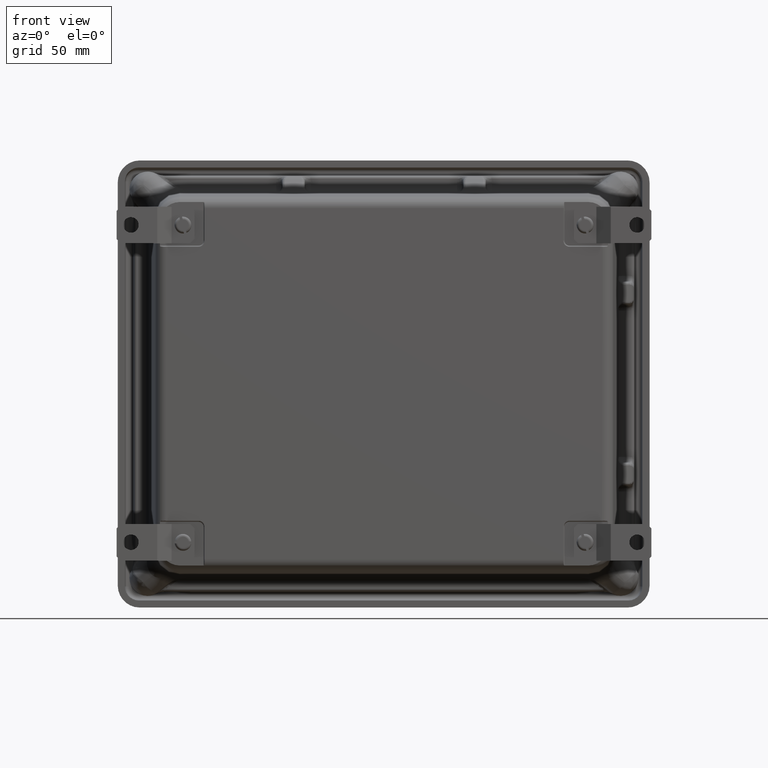
[diagram: clean part render]
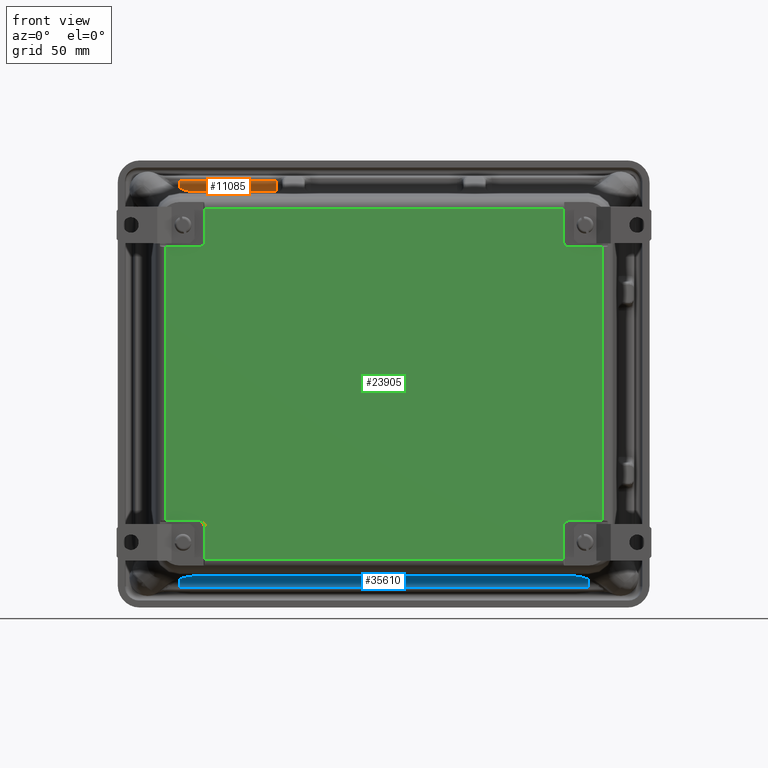
[diagram: same view with three faces highlighted in distinct colors, each labeled with its STEP entity id]
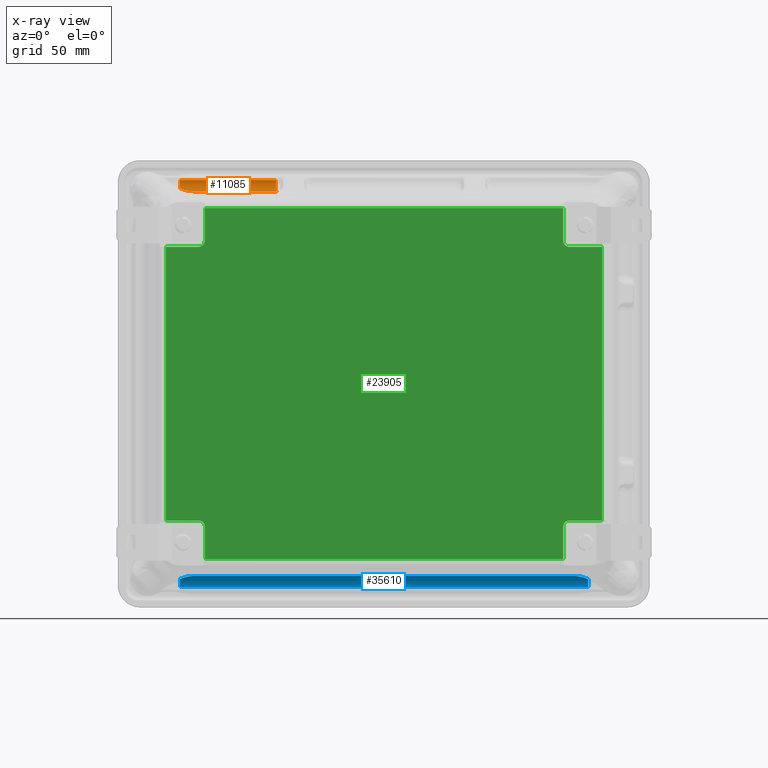
[diagram: x-ray of the same camera — body ghosted, the three highlighted faces saturated]
A machine part, front view with three faces highlighted in distinct colors.
The next image is the same camera in x-ray (body ghosted, the three faces saturated) — at least one of them is partly hidden behind the body in this view.
Their STEP definitions:

[orange] entity #11085 — the highlighted cylindrical surface (edge-blend (fillet) strip) has radius 6.3589 mm, axis along (1, 0, 0).
#1233 =( BOUNDED_CURVE ( )  B_SPLINE_CURVE ( 3, ( #3739, #22935, #10198, #32606 ),
 .UNSPECIFIED., .F., .F. ) 
 B_SPLINE_CURVE_WITH_KNOTS ( ( 4, 4 ),
 ( 1.605702911834783400, 2.838935483236554100 ),
 .UNSPECIFIED. ) 
 CURVE ( )  GEOMETRIC_REPRESENTATION_ITEM ( )  RATIONAL_B_SPLINE_CURVE ( ( 1.000000000000000000, 0.8772265670909403800, 0.8772265670909403800, 1.000000000000000000 ) ) 
 REPRESENTATION_ITEM ( '' )  );
#1348 = DIRECTION ( 'NONE',  ( 1.000000000000000000, 0.0000000000000000000, -0.0000000000000000000 ) ) ;
#1616 = ORIENTED_EDGE ( 'NONE', *, *, #17970, .T. ) ;
#1695 = DIRECTION ( 'NONE',  ( 0.0000000000000000000, 0.0000000000000000000, -1.000000000000000000 ) ) ;
#3131 = CARTESIAN_POINT ( 'NONE',  ( -4.348405325328011300, -0.4135707353202487400, 4.269545769669536900 ) ) ;
#3469 = EDGE_CURVE ( 'NONE', #31696, #31543, #22125, .T. ) ;
#3739 = CARTESIAN_POINT ( 'NONE',  ( -2.385870610584364100, -0.4886244273954343800, 4.255763832688103300 ) ) ;
#4304 = CARTESIAN_POINT ( 'NONE',  ( -4.522359172583527700, -0.3208723726247948400, 4.328403716901466000 ) ) ;
#6336 = CARTESIAN_POINT ( 'NONE',  ( -4.285051175324436900, -0.4507016555768828000, 4.259878568957955000 ) ) ;
#7265 = CARTESIAN_POINT ( 'NONE',  ( -2.385870610584364100, -0.4886244273954343800, 4.255763832688103300 ) ) ;
#7346 = LINE ( 'NONE', #13672, #24415 ) ;
#8345 = CARTESIAN_POINT ( 'NONE',  ( -2.390023214878807900, -0.2507943706766840900, 4.455669524789429100 ) ) ;
#8418 = ORIENTED_EDGE ( 'NONE', *, *, #29699, .F. ) ;
#8491 = CARTESIAN_POINT ( 'NONE',  ( -4.221474147852425100, -0.4886244273954343800, 4.255763832688103300 ) ) ;
#8825 = AXIS2_PLACEMENT_3D ( 'NONE', #40187, #20908, #1695 ) ;
#9572 = CARTESIAN_POINT ( 'NONE',  ( -4.253270122197903900, -0.4696053835573900100, 4.257125425173715200 ) ) ;
#10101 = VECTOR ( 'NONE', #15292, 39.37007874015748100 ) ;
#10198 = CARTESIAN_POINT ( 'NONE',  ( -2.389318005508715500, -0.2911834789554694800, 4.326320934037141800 ) ) ;
#11085 = ADVANCED_FACE ( 'NONE', ( #14900 ), #22421, .F. ) ;
#12815 = CARTESIAN_POINT ( 'NONE',  ( -4.234187804597752300, -0.4810091087923723500, 4.256116813504651700 ) ) ;
#13672 = CARTESIAN_POINT ( 'NONE',  ( -4.522359172583527700, -0.4886244273954343800, 4.255763832688103300 ) ) ;
#14139 = CARTESIAN_POINT ( 'NONE',  ( 5.233279627416470300, -0.4973615163949055600, 4.505961326232334600 ) ) ;
#14786 = EDGE_LOOP ( 'NONE', ( #16641, #19723, #17070, #37493, #1616, #8418 ) ) ;
#14900 = FACE_OUTER_BOUND ( 'NONE', #14786, .T. ) ;
#15292 = DIRECTION ( 'NONE',  ( 1.000000000000000000, 0.0000000000000000000, -0.0000000000000000000 ) ) ;
#15508 = EDGE_CURVE ( 'NONE', #31696, #30387, #22329, .T. ) ;
#16026 = CARTESIAN_POINT ( 'NONE',  ( -4.221474147852425100, -0.4886244273954343800, 4.255763832688103300 ) ) ;
#16641 = ORIENTED_EDGE ( 'NONE', *, *, #15508, .F. ) ;
#17070 = ORIENTED_EDGE ( 'NONE', *, *, #23780, .F. ) ;
#17828 = VERTEX_POINT ( 'NONE', #30232 ) ;
#17970 = EDGE_CURVE ( 'NONE', #25129, #17828, #18924, .T. ) ;
#18924 = B_SPLINE_CURVE_WITH_KNOTS ( 'NONE', 3,
 ( #37240, #8345, #40521, #21239 ),
 .UNSPECIFIED., .F., .F.,
 ( 4, 4 ),
 ( 0.0000000000000000000, 0.001918334017240655100 ),
 .UNSPECIFIED. ) ;
#19127 = CARTESIAN_POINT ( 'NONE',  ( -4.473006959829348300, -0.3443421855180934200, 4.305075135278900500 ) ) ;
#19723 = ORIENTED_EDGE ( 'NONE', *, *, #3469, .T. ) ;
#20234 = DIRECTION ( 'NONE',  ( -1.000000000000000000, -0.0000000000000000000, -0.0000000000000000000 ) ) ;
#20908 = DIRECTION ( 'NONE',  ( 1.000000000000000000, -0.0000000000000000000, 0.0000000000000000000 ) ) ;
#21239 = CARTESIAN_POINT ( 'NONE',  ( -2.387324626566271300, -0.2470115163949055400, 4.505961326232334600 ) ) ;
#22018 = VERTEX_POINT ( 'NONE', #7265 ) ;
#22125 = B_SPLINE_CURVE_WITH_KNOTS ( 'NONE', 3,
 ( #41641, #19127, #38353, #3131, #25569, #6336, #28798, #9572, #31998, #12815, #35242, #16026 ),
 .UNSPECIFIED., .F., .F.,
 ( 4, 2, 2, 2, 2, 4 ),
 ( 0.0000000000000000000, 0.004476710253215718400, 0.006715065379823581500, 0.007834242943127532600, 0.008393831724779490800, 0.008953420506431447300 ),
 .UNSPECIFIED. ) ;
#22329 = CIRCLE ( 'NONE', #8825, 0.2503500000000002400 ) ;
#22421 = CYLINDRICAL_SURFACE ( 'NONE', #33922, 0.2503500000000002400 ) ;
#22935 = CARTESIAN_POINT ( 'NONE',  ( -2.387790473985818900, -0.3786690381300650800, 4.259603559491015500 ) ) ;
#23780 = EDGE_CURVE ( 'NONE', #22018, #31543, #7346, .T. ) ;
#23815 = DIRECTION ( 'NONE',  ( 0.0000000000000000000, 0.0000000000000000000, -1.000000000000000000 ) ) ;
#24415 = VECTOR ( 'NONE', #20234, 39.37007874015748100 ) ;
#25129 = VERTEX_POINT ( 'NONE', #28079 ) ;
#25569 = CARTESIAN_POINT ( 'NONE',  ( -4.323145262304283400, -0.4282525182978754200, 4.264851303547051700 ) ) ;
#27151 = LINE ( 'NONE', #34471, #10101 ) ;
#28079 = CARTESIAN_POINT ( 'NONE',  ( -2.389890584286226400, -0.2583904571611491700, 4.431342593003362800 ) ) ;
#28798 = CARTESIAN_POINT ( 'NONE',  ( -4.272347337549065900, -0.4582391891496812000, 4.258569106722690700 ) ) ;
#29699 = EDGE_CURVE ( 'NONE', #30387, #17828, #27151, .T. ) ;
#30232 = CARTESIAN_POINT ( 'NONE',  ( -2.387324626566271300, -0.2470115163949055400, 4.505961326232334600 ) ) ;
#30387 = VERTEX_POINT ( 'NONE', #36397 ) ;
#31543 = VERTEX_POINT ( 'NONE', #8491 ) ;
#31696 = VERTEX_POINT ( 'NONE', #4304 ) ;
#31998 = CARTESIAN_POINT ( 'NONE',  ( -4.246910080210976300, -0.4734025581127837000, 4.256731211493828900 ) ) ;
#32124 = EDGE_CURVE ( 'NONE', #22018, #25129, #1233, .T. ) ;
#32606 = CARTESIAN_POINT ( 'NONE',  ( -2.389890584286226400, -0.2583904571611491700, 4.431342593003362800 ) ) ;
#33922 = AXIS2_PLACEMENT_3D ( 'NONE', #14139, #1348, #23815 ) ;
#34471 = CARTESIAN_POINT ( 'NONE',  ( 5.233279627416470300, -0.2470115163949055400, 4.505961326232334600 ) ) ;
#35242 = CARTESIAN_POINT ( 'NONE',  ( -4.227772443575889700, -0.4848503275058436700, 4.255895627160388300 ) ) ;
#36397 = CARTESIAN_POINT ( 'NONE',  ( -4.522359172583527700, -0.2470115163949055400, 4.505961326232334600 ) ) ;
#37240 = CARTESIAN_POINT ( 'NONE',  ( -2.389890584286226400, -0.2583904571611491700, 4.431342593003362800 ) ) ;
#37493 = ORIENTED_EDGE ( 'NONE', *, *, #32124, .T. ) ;
#38353 = CARTESIAN_POINT ( 'NONE',  ( -4.423566427176782100, -0.3709736762034355800, 4.287664308699508100 ) ) ;
#40187 = CARTESIAN_POINT ( 'NONE',  ( -4.522359172583527700, -0.4973615163949055600, 4.505961326232333700 ) ) ;
#40521 = CARTESIAN_POINT ( 'NONE',  ( -2.389228728469566100, -0.2470115163949055400, 4.480546071914156800 ) ) ;
#41641 = CARTESIAN_POINT ( 'NONE',  ( -4.522359172583527700, -0.3208723726247948400, 4.328403716901466000 ) ) ;

[blue] entity #35610 — the highlighted cylindrical surface (edge-blend (fillet) strip) has radius 6.3589 mm, axis along (-1, 0, 0).
#942 = CARTESIAN_POINT ( 'NONE',  ( -4.272368766197729400, -0.4581270703331620200, -4.256889311660899000 ) ) ;
#2356 = CARTESIAN_POINT ( 'NONE',  ( 4.522285627416470900, -0.3208723726247901800, -4.328464204698186700 ) ) ;
#2700 = CARTESIAN_POINT ( 'NONE',  ( 4.522285627416470900, -0.2470115163949055400, -4.506021814029050000 ) ) ;
#4390 = CARTESIAN_POINT ( 'NONE',  ( -4.522359172583528600, -0.3208723726247906200, -4.328464204698185800 ) ) ;
#4727 = EDGE_CURVE ( 'NONE', #39400, #26703, #10237, .T. ) ;
#4955 = CARTESIAN_POINT ( 'NONE',  ( 4.522285627416470900, -0.4973615163949056100, -4.506021814029050000 ) ) ;
#5573 = CARTESIAN_POINT ( 'NONE',  ( 4.323071717137213300, -0.4282525182978746400, -4.264911791343767100 ) ) ;
#6001 = DIRECTION ( 'NONE',  ( 0.0000000000000000000, 0.0000000000000000000, 1.000000000000000000 ) ) ;
#6413 = B_SPLINE_CURVE_WITH_KNOTS ( 'NONE', 3,
 ( #2356, #8669, #21562, #24802, #5573, #28039, #8820, #31257, #12047, #34452, #15273, #38299 ),
 .UNSPECIFIED., .F., .F.,
 ( 4, 2, 2, 2, 2, 4 ),
 ( 1.482148387583608500E-017, 0.004476710253215996800, 0.006715065379824003100, 0.007834242943128007900, 0.008393831724780009500, 0.008953420506432011000 ),
 .UNSPECIFIED. ) ;
#8211 = DIRECTION ( 'NONE',  ( 0.0000000000000000000, 0.0000000000000000000, 1.000000000000000000 ) ) ;
#8669 = CARTESIAN_POINT ( 'NONE',  ( 4.472933414662288800, -0.3443421855180897100, -4.305135623075619500 ) ) ;
#8820 = CARTESIAN_POINT ( 'NONE',  ( 4.272273792381994900, -0.4582391891496839200, -4.258629594519405300 ) ) ;
#8914 = AXIS2_PLACEMENT_3D ( 'NONE', #12510, #34939, #15719 ) ;
#9311 = EDGE_CURVE ( 'NONE', #11409, #13075, #6413, .T. ) ;
#9584 = ORIENTED_EDGE ( 'NONE', *, *, #21339, .F. ) ;
#10237 = CIRCLE ( 'NONE', #8914, 0.2503500000000002400 ) ;
#10641 = CARTESIAN_POINT ( 'NONE',  ( -4.423569854956307200, -0.3709718351022648900, -4.287726009426117800 ) ) ;
#11409 = VERTEX_POINT ( 'NONE', #29245 ) ;
#12047 = CARTESIAN_POINT ( 'NONE',  ( 4.246836535043899000, -0.4734025581127819800, -4.256791699290545200 ) ) ;
#12510 = CARTESIAN_POINT ( 'NONE',  ( -4.522359172583528600, -0.4973615163949055600, -4.506021814029050000 ) ) ;
#13075 = VERTEX_POINT ( 'NONE', #33147 ) ;
#13869 = CARTESIAN_POINT ( 'NONE',  ( -4.522359172583528600, -0.3208723726247906200, -4.328464204698185800 ) ) ;
#14696 = AXIS2_PLACEMENT_3D ( 'NONE', #28595, #31795, #6001 ) ;
#15273 = CARTESIAN_POINT ( 'NONE',  ( 4.227698898408238600, -0.4848503275048901000, -4.255956114957134800 ) ) ;
#15281 = DIRECTION ( 'NONE',  ( 1.000000000000000000, -0.0000000000000000000, -0.0000000000000000000 ) ) ;
#15368 = ORIENTED_EDGE ( 'NONE', *, *, #25760, .F. ) ;
#15719 = DIRECTION ( 'NONE',  ( 0.0000000000000000000, 0.0000000000000000000, 1.000000000000000000 ) ) ;
#16587 = EDGE_LOOP ( 'NONE', ( #9584, #37616, #15368, #29157, #32842, #17158 ) ) ;
#17158 = ORIENTED_EDGE ( 'NONE', *, *, #29112, .F. ) ;
#18044 = CYLINDRICAL_SURFACE ( 'NONE', #14696, 0.2503500000000002400 ) ;
#19049 = FACE_OUTER_BOUND ( 'NONE', #16587, .T. ) ;
#20169 = CARTESIAN_POINT ( 'NONE',  ( -4.221474147852429600, -0.4886244273954344400, -4.255824320484819600 ) ) ;
#20777 = VECTOR ( 'NONE', #15281, 39.37007874015748100 ) ;
#21339 = EDGE_CURVE ( 'NONE', #11409, #22718, #24027, .T. ) ;
#21562 = CARTESIAN_POINT ( 'NONE',  ( 4.423492882009720800, -0.3709736762034321300, -4.287724796496224400 ) ) ;
#22718 = VERTEX_POINT ( 'NONE', #2700 ) ;
#23162 = VECTOR ( 'NONE', #39321, 39.37007874015748100 ) ;
#24027 = CIRCLE ( 'NONE', #38343, 0.2503500000000002400 ) ;
#24802 = CARTESIAN_POINT ( 'NONE',  ( 4.348331780160941100, -0.4135707353202489600, -4.269606257466252300 ) ) ;
#25760 = EDGE_CURVE ( 'NONE', #27107, #13075, #27316, .T. ) ;
#26703 = VERTEX_POINT ( 'NONE', #35797 ) ;
#27107 = VERTEX_POINT ( 'NONE', #27305 ) ;
#27305 = CARTESIAN_POINT ( 'NONE',  ( -4.221474147852429600, -0.4886244273954344400, -4.255824320484819600 ) ) ;
#27316 = LINE ( 'NONE', #37717, #20777 ) ;
#27431 = DIRECTION ( 'NONE',  ( -1.000000000000000000, 0.0000000000000000000, 0.0000000000000000000 ) ) ;
#28039 = CARTESIAN_POINT ( 'NONE',  ( 4.284977630157364100, -0.4507016555768835200, -4.259939056754669600 ) ) ;
#28486 = B_SPLINE_CURVE_WITH_KNOTS ( 'NONE', 3,
 ( #20169, #942, #29844, #10641, #33060, #13869 ),
 .UNSPECIFIED., .F., .F.,
 ( 4, 2, 4 ),
 ( -3.096646515194551300E-005, 0.004490900834559320900, 0.009012768134270588600 ),
 .UNSPECIFIED. ) ;
#28595 = CARTESIAN_POINT ( 'NONE',  ( 5.233279627416470300, -0.4973615163949055600, -4.506021814029050000 ) ) ;
#29112 = EDGE_CURVE ( 'NONE', #22718, #26703, #41320, .T. ) ;
#29157 = ORIENTED_EDGE ( 'NONE', *, *, #38951, .T. ) ;
#29245 = CARTESIAN_POINT ( 'NONE',  ( 4.522285627416470900, -0.3208723726247901800, -4.328464204698186700 ) ) ;
#29844 = CARTESIAN_POINT ( 'NONE',  ( -4.323358616576917300, -0.4277656908726179000, -4.263568043354375400 ) ) ;
#31257 = CARTESIAN_POINT ( 'NONE',  ( 4.253196577030832000, -0.4696053835573949500, -4.257185912970431500 ) ) ;
#31795 = DIRECTION ( 'NONE',  ( -1.000000000000000000, 0.0000000000000000000, 0.0000000000000000000 ) ) ;
#32842 = ORIENTED_EDGE ( 'NONE', *, *, #4727, .T. ) ;
#33060 = CARTESIAN_POINT ( 'NONE',  ( -4.473008670264473400, -0.3443413721079064400, -4.305136431591047400 ) ) ;
#33147 = CARTESIAN_POINT ( 'NONE',  ( 4.221400602685361200, -0.4886244273954344400, -4.255824320484819600 ) ) ;
#34452 = CARTESIAN_POINT ( 'NONE',  ( 4.234114259430672400, -0.4810091087923674700, -4.256177301301368000 ) ) ;
#34939 = DIRECTION ( 'NONE',  ( -1.000000000000000000, 0.0000000000000000000, 0.0000000000000000000 ) ) ;
#35610 = ADVANCED_FACE ( 'NONE', ( #19049 ), #18044, .F. ) ;
#35797 = CARTESIAN_POINT ( 'NONE',  ( -4.522359172583528600, -0.2470115163949055400, -4.506021814029050000 ) ) ;
#36075 = CARTESIAN_POINT ( 'NONE',  ( 5.233279627416470300, -0.2470115163949055400, -4.506021814029050000 ) ) ;
#37616 = ORIENTED_EDGE ( 'NONE', *, *, #9311, .T. ) ;
#37717 = CARTESIAN_POINT ( 'NONE',  ( -4.522359172583528600, -0.4886244273954344400, -4.255824320484819600 ) ) ;
#38299 = CARTESIAN_POINT ( 'NONE',  ( 4.221400602685361200, -0.4886244273954344400, -4.255824320484819600 ) ) ;
#38343 = AXIS2_PLACEMENT_3D ( 'NONE', #4955, #27431, #8211 ) ;
#38951 = EDGE_CURVE ( 'NONE', #27107, #39400, #28486, .T. ) ;
#39321 = DIRECTION ( 'NONE',  ( -1.000000000000000000, 0.0000000000000000000, 0.0000000000000000000 ) ) ;
#39400 = VERTEX_POINT ( 'NONE', #4390 ) ;
#41320 = LINE ( 'NONE', #36075, #23162 ) ;

[green] entity #23905 — the highlighted planar face has unit normal (0, -1, 0).
#594 = AXIS2_PLACEMENT_3D ( 'NONE', #7443, #29867, #10676 ) ;
#1448 = VERTEX_POINT ( 'NONE', #31508 ) ;
#1698 = CARTESIAN_POINT ( 'NONE',  ( 4.825238801046245900, -4.127436516394905800, -3.028947124559904700 ) ) ;
#1825 = VECTOR ( 'NONE', #16665, 39.37007874015748100 ) ;
#2306 = FACE_OUTER_BOUND ( 'NONE', #18319, .T. ) ;
#3208 = LINE ( 'NONE', #15064, #34299 ) ;
#3382 = EDGE_CURVE ( 'NONE', #24184, #34783, #3208, .T. ) ;
#3454 = ORIENTED_EDGE ( 'NONE', *, *, #3382, .T. ) ;
#3636 = DIRECTION ( 'NONE',  ( -3.053196975316304700E-016, -0.0000000000000000000, -1.000000000000000000 ) ) ;
#3939 = CARTESIAN_POINT ( 'NONE',  ( -3.967265453245074600, -4.127436516394905800, -3.168459843898358700 ) ) ;
#4875 = VERTEX_POINT ( 'NONE', #32803 ) ;
#5207 = PLANE ( 'NONE',  #7107 ) ;
#5520 = DIRECTION ( 'NONE',  ( 1.000000000000000000, -0.0000000000000000000, 5.906698364679481900E-016 ) ) ;
#6273 = DIRECTION ( 'NONE',  ( 5.906698364679487800E-016, -0.0000000000000000000, -1.000000000000000000 ) ) ;
#6379 = CARTESIAN_POINT ( 'NONE',  ( 3.967191908078016900, -4.127436516394905800, 3.886933529731417400 ) ) ;
#6956 = CIRCLE ( 'NONE', #15631, 0.1395127193384542700 ) ;
#6993 = VERTEX_POINT ( 'NONE', #11840 ) ;
#6996 = CARTESIAN_POINT ( 'NONE',  ( 3.967191908078016900, -4.127436516394905800, -3.168459843898358700 ) ) ;
#7101 = CARTESIAN_POINT ( 'NONE',  ( -4.825312346213301900, -4.127436516394905800, 3.028886636763187000 ) ) ;
#7107 = AXIS2_PLACEMENT_3D ( 'NONE', #33671, #8445, #30885 ) ;
#7385 = CARTESIAN_POINT ( 'NONE',  ( 4.825238801046245900, -4.127436516394905800, -3.584040843898361300 ) ) ;
#7443 = CARTESIAN_POINT ( 'NONE',  ( 4.106704627416471400, -4.127436516394905800, 3.168399356101640600 ) ) ;
#8445 = DIRECTION ( 'NONE',  ( 0.0000000000000000000, -1.000000000000000000, 0.0000000000000000000 ) ) ;
#8599 = EDGE_CURVE ( 'NONE', #18609, #33071, #37132, .T. ) ;
#8769 = CARTESIAN_POINT ( 'NONE',  ( -4.106778172583530000, -4.127436516394905800, -3.028947124559903800 ) ) ;
#9232 = DIRECTION ( 'NONE',  ( 0.0000000000000000000, 1.000000000000000000, -0.0000000000000000000 ) ) ;
#9626 = CARTESIAN_POINT ( 'NONE',  ( -4.106778172583529100, -4.127436516394905800, 3.168399356101640600 ) ) ;
#10098 = CARTESIAN_POINT ( 'NONE',  ( -4.825312346213303600, -4.127436516394905800, -3.584040843898358200 ) ) ;
#10378 = LINE ( 'NONE', #6996, #1825 ) ;
#10553 = VERTEX_POINT ( 'NONE', #36082 ) ;
#10615 = DIRECTION ( 'NONE',  ( 3.053196975316304700E-016, -0.0000000000000000000, 1.000000000000000000 ) ) ;
#10676 = DIRECTION ( 'NONE',  ( 0.0000000000000000000, 0.0000000000000000000, -1.000000000000000000 ) ) ;
#10752 = VERTEX_POINT ( 'NONE', #28350 ) ;
#11783 = EDGE_CURVE ( 'NONE', #40037, #10752, #30001, .T. ) ;
#11840 = CARTESIAN_POINT ( 'NONE',  ( 4.106704627416472200, -4.127436516394905800, -3.028947124559903800 ) ) ;
#12097 = CARTESIAN_POINT ( 'NONE',  ( -3.967265453245076000, -4.127436516394905800, -3.886994017528132800 ) ) ;
#12199 = EDGE_CURVE ( 'NONE', #21687, #6993, #27486, .T. ) ;
#12308 = EDGE_CURVE ( 'NONE', #12983, #23022, #23442, .T. ) ;
#12768 = AXIS2_PLACEMENT_3D ( 'NONE', #19101, #41605, #22291 ) ;
#12783 = CARTESIAN_POINT ( 'NONE',  ( -3.967265453245074600, -4.127436516394905800, 3.886933529731417400 ) ) ;
#12863 = DIRECTION ( 'NONE',  ( 0.0000000000000000000, 0.0000000000000000000, -1.000000000000000000 ) ) ;
#12983 = VERTEX_POINT ( 'NONE', #7101 ) ;
#13380 = CARTESIAN_POINT ( 'NONE',  ( 4.106704627416471400, -4.127436516394905800, 3.028886636763185700 ) ) ;
#13656 = ORIENTED_EDGE ( 'NONE', *, *, #39954, .T. ) ;
#13690 = VECTOR ( 'NONE', #28837, 39.37007874015748100 ) ;
#13759 = VECTOR ( 'NONE', #10615, 39.37007874015748100 ) ;
#14413 = ORIENTED_EDGE ( 'NONE', *, *, #21867, .T. ) ;
#14701 = VERTEX_POINT ( 'NONE', #26078 ) ;
#14757 = LINE ( 'NONE', #7385, #13759 ) ;
#14915 = VECTOR ( 'NONE', #3636, 39.37007874015748100 ) ;
#15064 = CARTESIAN_POINT ( 'NONE',  ( -3.967265453245076000, -4.127436516394905800, -3.886994017528132800 ) ) ;
#15631 = AXIS2_PLACEMENT_3D ( 'NONE', #28464, #9232, #31668 ) ;
#16209 = CIRCLE ( 'NONE', #35072, 0.1395127193384542700 ) ;
#16350 = EDGE_CURVE ( 'NONE', #10553, #18609, #30819, .T. ) ;
#16665 = DIRECTION ( 'NONE',  ( -1.181339672935897600E-015, -0.0000000000000000000, 1.000000000000000000 ) ) ;
#16758 = ORIENTED_EDGE ( 'NONE', *, *, #12308, .T. ) ;
#16865 = VECTOR ( 'NONE', #20734, 39.37007874015748100 ) ;
#17543 = CARTESIAN_POINT ( 'NONE',  ( -4.825312346213301900, -4.127436516394905800, 3.028886636763186600 ) ) ;
#18301 = DIRECTION ( 'NONE',  ( -1.181339672935897600E-015, -0.0000000000000000000, -1.000000000000000000 ) ) ;
#18319 = EDGE_LOOP ( 'NONE', ( #13656, #37515, #19050, #34925, #38731, #21040, #40196, #34966, #21255, #21182, #29285, #30268, #16758, #40797, #14413, #3454 ) ) ;
#18609 = VERTEX_POINT ( 'NONE', #12783 ) ;
#19050 = ORIENTED_EDGE ( 'NONE', *, *, #12199, .T. ) ;
#19101 = CARTESIAN_POINT ( 'NONE',  ( 4.106704627416472200, -4.127436516394905800, -3.168459843898358700 ) ) ;
#19131 = DIRECTION ( 'NONE',  ( -1.000000000000000000, -0.0000000000000000000, -0.0000000000000000000 ) ) ;
#20734 = DIRECTION ( 'NONE',  ( -1.000000000000000000, -0.0000000000000000000, 5.906698364679483900E-016 ) ) ;
#21040 = ORIENTED_EDGE ( 'NONE', *, *, #11783, .T. ) ;
#21182 = ORIENTED_EDGE ( 'NONE', *, *, #8599, .T. ) ;
#21255 = ORIENTED_EDGE ( 'NONE', *, *, #16350, .T. ) ;
#21441 = DIRECTION ( 'NONE',  ( 1.000000000000000000, -0.0000000000000000000, -0.0000000000000000000 ) ) ;
#21687 = VERTEX_POINT ( 'NONE', #33358 ) ;
#21867 = EDGE_CURVE ( 'NONE', #14701, #24184, #6956, .T. ) ;
#21992 = CARTESIAN_POINT ( 'NONE',  ( 3.967191908078017800, -4.127436516394905800, -3.886994017528132800 ) ) ;
#22282 = VECTOR ( 'NONE', #19131, 39.37007874015748100 ) ;
#22291 = DIRECTION ( 'NONE',  ( 0.0000000000000000000, 0.0000000000000000000, -1.000000000000000000 ) ) ;
#23022 = VERTEX_POINT ( 'NONE', #39473 ) ;
#23442 = LINE ( 'NONE', #10098, #14915 ) ;
#23543 = EDGE_CURVE ( 'NONE', #29787, #21687, #10378, .T. ) ;
#23629 = CIRCLE ( 'NONE', #594, 0.1395127193384542700 ) ;
#23905 = ADVANCED_FACE ( 'NONE', ( #2306 ), #5207, .T. ) ;
#24184 = VERTEX_POINT ( 'NONE', #3939 ) ;
#24352 = EDGE_CURVE ( 'NONE', #1448, #12983, #33877, .T. ) ;
#24431 = VECTOR ( 'NONE', #5520, 39.37007874015748100 ) ;
#25962 = EDGE_CURVE ( 'NONE', #4875, #40037, #14757, .T. ) ;
#26078 = CARTESIAN_POINT ( 'NONE',  ( -4.106778172583530000, -4.127436516394905800, -3.028947124559903800 ) ) ;
#27486 = CIRCLE ( 'NONE', #12768, 0.1395127193384542700 ) ;
#28350 = CARTESIAN_POINT ( 'NONE',  ( 4.106704627416471400, -4.127436516394905800, 3.028886636763185700 ) ) ;
#28407 = EDGE_CURVE ( 'NONE', #37269, #10553, #30730, .T. ) ;
#28464 = CARTESIAN_POINT ( 'NONE',  ( -4.106778172583530000, -4.127436516394905800, -3.168459843898358700 ) ) ;
#28594 = VECTOR ( 'NONE', #6273, 39.37007874015748100 ) ;
#28837 = DIRECTION ( 'NONE',  ( 5.906698364679487800E-016, -0.0000000000000000000, 1.000000000000000000 ) ) ;
#29285 = ORIENTED_EDGE ( 'NONE', *, *, #32074, .T. ) ;
#29787 = VERTEX_POINT ( 'NONE', #21992 ) ;
#29867 = DIRECTION ( 'NONE',  ( 0.0000000000000000000, 1.000000000000000000, -0.0000000000000000000 ) ) ;
#29894 = DIRECTION ( 'NONE',  ( 1.000000000000000000, -0.0000000000000000000, -5.906698364679481900E-016 ) ) ;
#30001 = LINE ( 'NONE', #13380, #38566 ) ;
#30268 = ORIENTED_EDGE ( 'NONE', *, *, #24352, .T. ) ;
#30730 = LINE ( 'NONE', #6379, #13690 ) ;
#30819 = LINE ( 'NONE', #38354, #22282 ) ;
#30885 = DIRECTION ( 'NONE',  ( 0.0000000000000000000, -0.0000000000000000000, -1.000000000000000000 ) ) ;
#30965 = CARTESIAN_POINT ( 'NONE',  ( -3.967265453245074200, -4.127436516394905800, 3.168399356101640600 ) ) ;
#31508 = CARTESIAN_POINT ( 'NONE',  ( -4.106778172583529100, -4.127436516394905800, 3.028886636763185700 ) ) ;
#31668 = DIRECTION ( 'NONE',  ( 0.0000000000000000000, 0.0000000000000000000, -1.000000000000000000 ) ) ;
#31984 = LINE ( 'NONE', #1698, #39561 ) ;
#32053 = DIRECTION ( 'NONE',  ( 0.0000000000000000000, 1.000000000000000000, -0.0000000000000000000 ) ) ;
#32074 = EDGE_CURVE ( 'NONE', #33071, #1448, #16209, .T. ) ;
#32803 = CARTESIAN_POINT ( 'NONE',  ( 4.825238801046245900, -4.127436516394905800, -3.028947124559904700 ) ) ;
#33071 = VERTEX_POINT ( 'NONE', #30965 ) ;
#33358 = CARTESIAN_POINT ( 'NONE',  ( 3.967191908078016900, -4.127436516394905800, -3.168459843898358700 ) ) ;
#33671 = CARTESIAN_POINT ( 'NONE',  ( -4.522359172583528600, -4.127436516394905800, -3.584040843898358200 ) ) ;
#33877 = LINE ( 'NONE', #17543, #16865 ) ;
#34299 = VECTOR ( 'NONE', #18301, 39.37007874015748100 ) ;
#34765 = CARTESIAN_POINT ( 'NONE',  ( 4.825238801046247700, -4.127436516394905800, 3.028886636763186600 ) ) ;
#34783 = VERTEX_POINT ( 'NONE', #12097 ) ;
#34925 = ORIENTED_EDGE ( 'NONE', *, *, #38020, .T. ) ;
#34966 = ORIENTED_EDGE ( 'NONE', *, *, #28407, .T. ) ;
#35072 = AXIS2_PLACEMENT_3D ( 'NONE', #9626, #32053, #12863 ) ;
#35819 = DIRECTION ( 'NONE',  ( -1.000000000000000000, -0.0000000000000000000, -5.906698364679483900E-016 ) ) ;
#36082 = CARTESIAN_POINT ( 'NONE',  ( 3.967191908078017800, -4.127436516394905800, 3.886933529731417400 ) ) ;
#37132 = LINE ( 'NONE', #41563, #28594 ) ;
#37269 = VERTEX_POINT ( 'NONE', #40846 ) ;
#37515 = ORIENTED_EDGE ( 'NONE', *, *, #23543, .T. ) ;
#37623 = EDGE_CURVE ( 'NONE', #23022, #14701, #41573, .T. ) ;
#37940 = VECTOR ( 'NONE', #21441, 39.37007874015748100 ) ;
#38020 = EDGE_CURVE ( 'NONE', #6993, #4875, #31984, .T. ) ;
#38354 = CARTESIAN_POINT ( 'NONE',  ( -4.522359172583528600, -4.127436516394905800, 3.886933529731417400 ) ) ;
#38566 = VECTOR ( 'NONE', #35819, 39.37007874015748100 ) ;
#38731 = ORIENTED_EDGE ( 'NONE', *, *, #25962, .T. ) ;
#38955 = LINE ( 'NONE', #40745, #37940 ) ;
#39473 = CARTESIAN_POINT ( 'NONE',  ( -4.825312346213303600, -4.127436516394905800, -3.028947124559904700 ) ) ;
#39561 = VECTOR ( 'NONE', #29894, 39.37007874015748100 ) ;
#39954 = EDGE_CURVE ( 'NONE', #34783, #29787, #38955, .T. ) ;
#40037 = VERTEX_POINT ( 'NONE', #34765 ) ;
#40196 = ORIENTED_EDGE ( 'NONE', *, *, #41466, .T. ) ;
#40745 = CARTESIAN_POINT ( 'NONE',  ( -4.522359172583528600, -4.127436516394905800, -3.886994017528132800 ) ) ;
#40797 = ORIENTED_EDGE ( 'NONE', *, *, #37623, .T. ) ;
#40846 = CARTESIAN_POINT ( 'NONE',  ( 3.967191908078016500, -4.127436516394905800, 3.168399356101640600 ) ) ;
#41466 = EDGE_CURVE ( 'NONE', #10752, #37269, #23629, .T. ) ;
#41563 = CARTESIAN_POINT ( 'NONE',  ( -3.967265453245074200, -4.127436516394905800, 3.168399356101640600 ) ) ;
#41573 = LINE ( 'NONE', #8769, #24431 ) ;
#41605 = DIRECTION ( 'NONE',  ( 0.0000000000000000000, 1.000000000000000000, -0.0000000000000000000 ) ) ;